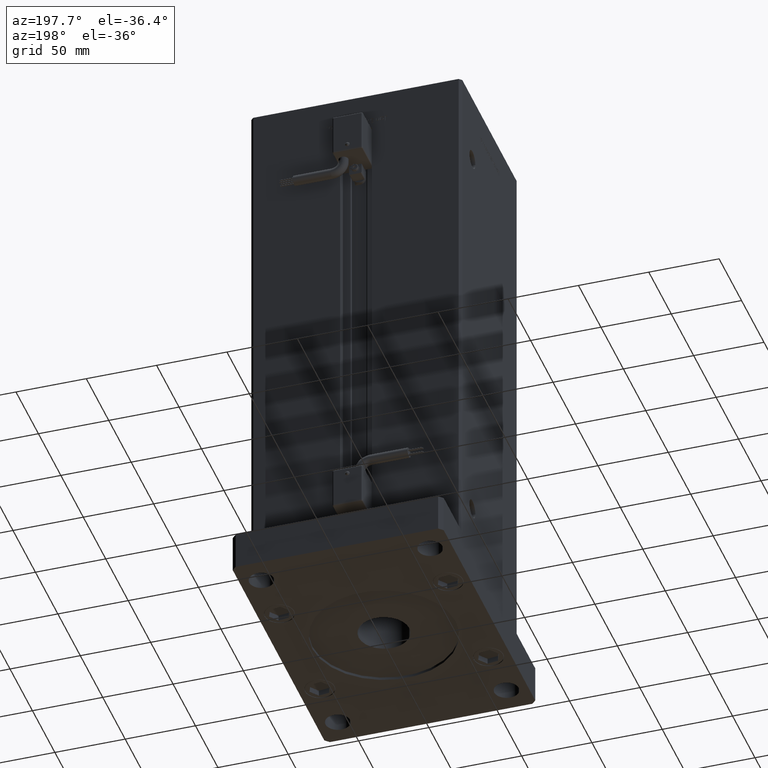
[diagram: clean part render]
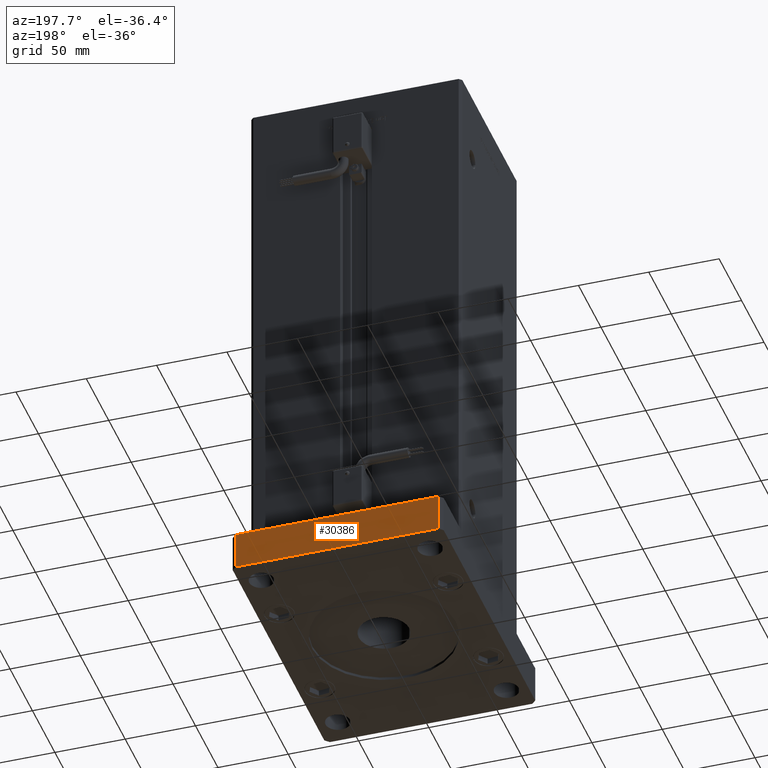
[diagram: same view with one face highlighted and labeled with its STEP entity id]
A machine part, auxiliary view. The second image highlights one B-rep face of the part: STEP entity #30386.
In plain terms, the highlighted planar face has unit normal (0, -1, 0).
Its self-contained STEP definition (entity closure, byte-faithful):
#565 = LINE ( 'NONE', #52998, #808 ) ;
#808 = VECTOR ( 'NONE', #30676, 1000.000000000000000 ) ;
#877 = CARTESIAN_POINT ( 'NONE',  ( 72.00000000000004263, 105.0000000000000284, 27.00000000000000000 ) ) ;
#3788 = CARTESIAN_POINT ( 'NONE',  ( 72.00000000000004263, 105.0000000000000284, 0.000000000000000000 ) ) ;
#4316 = EDGE_CURVE ( 'NONE', #7977, #33978, #5936, .T. ) ;
#4531 = LINE ( 'NONE', #38382, #5519 ) ;
#5519 = VECTOR ( 'NONE', #21459, 1000.000000000000000 ) ;
#5936 = LINE ( 'NONE', #23425, #26333 ) ;
#7386 = PLANE ( 'NONE',  #43345 ) ;
#7446 = EDGE_CURVE ( 'NONE', #13473, #15768, #565, .T. ) ;
#7964 = ORIENTED_EDGE ( 'NONE', *, *, #27285, .F. ) ;
#7977 = VERTEX_POINT ( 'NONE', #14284 ) ;
#8202 = ORIENTED_EDGE ( 'NONE', *, *, #10901, .T. ) ;
#8463 = VECTOR ( 'NONE', #35566, 1000.000000000000000 ) ;
#9507 = EDGE_LOOP ( 'NONE', ( #8202, #44522, #7964, #36322 ) ) ;
#10901 = EDGE_CURVE ( 'NONE', #15768, #33978, #4531, .T. ) ;
#13473 = VERTEX_POINT ( 'NONE', #36783 ) ;
#13509 = LINE ( 'NONE', #877, #8463 ) ;
#14284 = CARTESIAN_POINT ( 'NONE',  ( -72.00000000000002842, 105.0000000000000000, 27.00000000000000000 ) ) ;
#15768 = VERTEX_POINT ( 'NONE', #3788 ) ;
#20835 = CARTESIAN_POINT ( 'NONE',  ( 72.00000000000004263, 105.0000000000000284, 27.00000000000000000 ) ) ;
#21459 = DIRECTION ( 'NONE',  ( -1.000000000000000000, -1.927470528863118062E-16, 0.000000000000000000 ) ) ;
#23425 = CARTESIAN_POINT ( 'NONE',  ( -72.00000000000002842, 105.0000000000000000, 27.00000000000000000 ) ) ;
#24862 = DIRECTION ( 'NONE',  ( 1.927470528863118309E-16, -1.000000000000000000, 0.000000000000000000 ) ) ;
#26333 = VECTOR ( 'NONE', #54060, 1000.000000000000000 ) ;
#27285 = EDGE_CURVE ( 'NONE', #13473, #7977, #13509, .T. ) ;
#29718 = DIRECTION ( 'NONE',  ( 1.000000000000000000, 1.927470528863118309E-16, 0.000000000000000000 ) ) ;
#30386 = ADVANCED_FACE ( 'NONE', ( #47184 ), #7386, .F. ) ;
#30676 = DIRECTION ( 'NONE',  ( -0.000000000000000000, -0.000000000000000000, -1.000000000000000000 ) ) ;
#30843 = CARTESIAN_POINT ( 'NONE',  ( -72.00000000000002842, 105.0000000000000000, 0.000000000000000000 ) ) ;
#33978 = VERTEX_POINT ( 'NONE', #30843 ) ;
#35566 = DIRECTION ( 'NONE',  ( -1.000000000000000000, -1.927470528863118062E-16, 0.000000000000000000 ) ) ;
#36322 = ORIENTED_EDGE ( 'NONE', *, *, #7446, .T. ) ;
#36783 = CARTESIAN_POINT ( 'NONE',  ( 72.00000000000004263, 105.0000000000000284, 27.00000000000000000 ) ) ;
#38382 = CARTESIAN_POINT ( 'NONE',  ( 72.00000000000004263, 105.0000000000000284, 0.000000000000000000 ) ) ;
#43345 = AXIS2_PLACEMENT_3D ( 'NONE', #20835, #24862, #29718 ) ;
#44522 = ORIENTED_EDGE ( 'NONE', *, *, #4316, .F. ) ;
#47184 = FACE_OUTER_BOUND ( 'NONE', #9507, .T. ) ;
#52998 = CARTESIAN_POINT ( 'NONE',  ( 72.00000000000004263, 105.0000000000000284, 27.00000000000000000 ) ) ;
#54060 = DIRECTION ( 'NONE',  ( -0.000000000000000000, -0.000000000000000000, -1.000000000000000000 ) ) ;